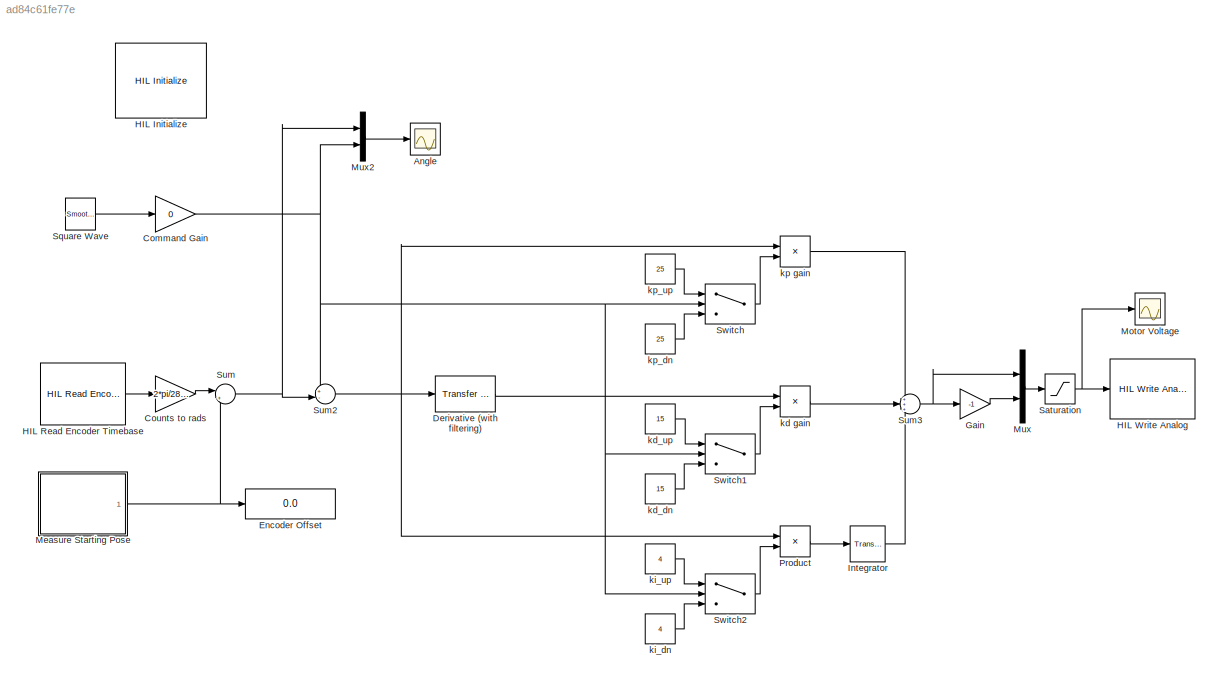
MODEL slx_ad84c61fe77e
KIND model
CONFIG AbsTol = auto
CONFIG EnableMultiTasking = off
CONFIG FixedStep = 0.002
CONFIG MaxStep = auto
CONFIG MinStep = auto
CONFIG RelTol = 1e-3
CONFIG SampleTimeConstraint = Unconstrained
CONFIG SolverName = ode1
CONFIG StartTime = 0.0
CONFIG StopTime = inf
BLOCK [Scope] Angle
  Floating = off
  NumInputPorts = 1
  Ports = [1]
  ScopeSpecificationString = Simulink.scopes.TimeScopeBlockCfg('CurrentConfiguration', extmgr.ConfigurationSet(extmgr.Configuration('Core','General UI',true),extmgr.Configuration('Core','Source UI',true),extmgr.Configuration('Sources','WiredSimulink',true,'DataLoggingVariableName','ScopeData1','DataLoggingMaxPoints','20000','DataLoggingSaveFormat','Array','DataLoggingDecimation','1'),extmgr.Configuration('Visuals','Time Domai...<+1735ch>
BLOCK [Gain] Command Gain
  Gain = 0
BLOCK [Gain] Counts to rads
  Gain = 2*pi/2880
BLOCK [Reference] Derivative (with filtering)  REF=simulink_extras/Additional
Linear/Transfer Fcn
(with initial states)
  Ports = [1, 1]
  SourceBlock = simulink_extras/Additional\nLinear/Transfer Fcn\n(with initial states)
  SourceProductBaseCode = SL
  SourceType = Transfer Function with Initial States
BLOCK [Display] Encoder Offset
  Decimation = 1
  Ports = [1]
BLOCK [Gain] Gain
  Gain = -1
BLOCK [Reference] HIL Initialize  REF=quarc_library/Data Acquisition/Generic/Configuration/HIL Initialize
  AttributesFormatString = %<object_name> (%<board_type>-%<board_number>)
  Ports = []
  Priority = -99
  SourceBlock = quarc_library/Data Acquisition/Generic/Configuration/HIL Initialize
  SourceProductName = QUARC Targets
  SourceType = HIL Initialize
  UserDataPersistent = on
BLOCK [Reference] HIL Read Encoder Timebase  REF=quarc_library/Data Acquisition/Generic/Timebases/HIL Read Encoder
Timebase
  AttributesFormatString = (%<object_name>)
  Ports = [0, 1]
  SourceBlock = quarc_library/Data Acquisition/Generic/Timebases/HIL Read Encoder\nTimebase
  SourceProductName = QUARC Targets
  SourceType = HIL Read Encoder Timebase
  UserDataPersistent = on
BLOCK [Reference] HIL Write Analog  REF=quarc_library/Data Acquisition/Generic/Immediate I//O/HIL Write Analog
  AttributesFormatString = (%<object_name>)
  Ports = [1]
  SourceBlock = quarc_library/Data Acquisition/Generic/Immediate I//O/HIL Write Analog
  SourceProductName = QUARC Targets
  SourceType = HIL Write Analog
  UserDataPersistent = on
BLOCK [Reference] Integrator  REF=simulink_extras/Additional
Linear/Transfer Fcn
(with initial states)
  Ports = [1, 1]
  SourceBlock = simulink_extras/Additional\nLinear/Transfer Fcn\n(with initial states)
  SourceProductBaseCode = SL
  SourceType = Transfer Function with Initial States
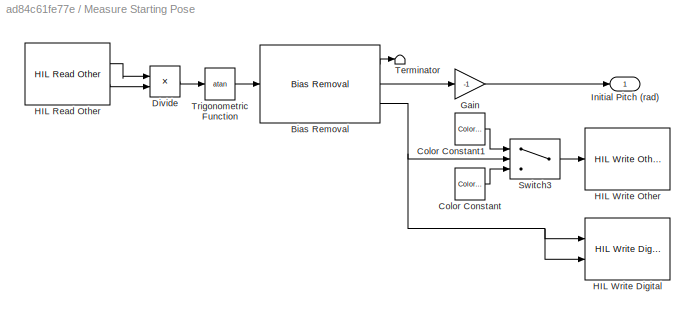
BLOCK [SubSystem] Measure Starting Pose
  Ports = [0, 1]
  RequestExecContextInheritance = off
BLOCK [Reference] Measure Starting Pose/Bias Removal  REF=quarc_library/Discrete/Bias Removal
  Ports = [1, 3]
  SourceBlock = quarc_library/Discrete/Bias Removal
  SourceProductName = QUARC Targets
  SourceType = Bias Removal
BLOCK [Reference] Measure Starting Pose/Color Constant  REF=quarc_library/Sources/Signals/Color Constant
  Ports = [0, 1]
  SourceBlock = quarc_library/Sources/Signals/Color Constant
  SourceProductName = QUARC Targets
  SourceType = Color Constant
BLOCK [Reference] Measure Starting Pose/Color Constant1  REF=quarc_library/Sources/Signals/Color Constant
  Ports = [0, 1]
  SourceBlock = quarc_library/Sources/Signals/Color Constant
  SourceProductName = QUARC Targets
  SourceType = Color Constant
BLOCK [Product] Measure Starting Pose/Divide
  Inputs = */
  Ports = [2, 1]
BLOCK [Gain] Measure Starting Pose/Gain
  Gain = -1
BLOCK [Reference] Measure Starting Pose/HIL Read Other  REF=quarc_library/Data Acquisition/Generic/Immediate I//O/HIL Read Other
  AttributesFormatString = (%<object_name>)
  Ports = [0, 2]
  SourceBlock = quarc_library/Data Acquisition/Generic/Immediate I//O/HIL Read Other
  SourceProductName = QUARC Targets
  SourceType = HIL Read Other
  UserDataPersistent = on
BLOCK [Reference] Measure Starting Pose/HIL Write Digital  REF=quarc_library/Data Acquisition/Generic/Immediate I//O/HIL Write Digital
  AttributesFormatString = (%<object_name>)
  Ports = [2]
  SourceBlock = quarc_library/Data Acquisition/Generic/Immediate I//O/HIL Write Digital
  SourceProductName = QUARC Targets
  SourceType = HIL Write Digital
  UserDataPersistent = on
BLOCK [Reference] Measure Starting Pose/HIL Write Other  REF=quarc_library/Data Acquisition/Generic/Immediate I//O/HIL Write Other
  AttributesFormatString = (%<object_name>)
  Ports = [1]
  SourceBlock = quarc_library/Data Acquisition/Generic/Immediate I//O/HIL Write Other
  SourceProductName = QUARC Targets
  SourceType = HIL Write Other
  UserDataPersistent = on
BLOCK [Outport] Measure Starting Pose/Initial Pitch (rad)
BLOCK [Switch] Measure Starting Pose/Switch3
  Criteria = u2 ~= 0
  InputSameDT = off
  SaturateOnIntegerOverflow = off
BLOCK [Terminator] Measure Starting Pose/Terminator
BLOCK [Trigonometry] Measure Starting Pose/Trigonometric Function
  Operator = atan
  Ports = [1, 1]
BLOCK [Scope] Motor Voltage
  Floating = off
  NumInputPorts = 1
  Ports = [1]
  ScopeSpecificationString = Simulink.scopes.TimeScopeBlockCfg('CurrentConfiguration', extmgr.ConfigurationSet(extmgr.Configuration('Core','General UI',true),extmgr.Configuration('Core','Source UI',true),extmgr.Configuration('Sources','WiredSimulink',true,'DataLoggingMaxPoints','20000','DataLoggingSaveFormat','Array','DataLoggingDecimation','1'),extmgr.Configuration('Visuals','Time Domain',true,'SerializedDisplays',{struct('M...<+1714ch>
BLOCK [Mux] Mux
  DisplayOption = bar
  Inputs = 2
  Ports = [2, 1]
BLOCK [Mux] Mux2
  DisplayOption = bar
  Inputs = 2
  Ports = [2, 1]
BLOCK [Product] Product
  Ports = [2, 1]
BLOCK [Saturate] Saturation
  LowerLimit = -24
  UpperLimit = 24
BLOCK [Reference] Square Wave  REF=quarc_library/Sources/Signals/Smooth Signal
Generator
  Ports = [0, 1]
  SourceBlock = quarc_library/Sources/Signals/Smooth Signal\nGenerator
  SourceProductName = QUARC Targets
  SourceType = Smooth Signal Generator
BLOCK [Sum] Sum
  Inputs = |++
  Ports = [2, 1]
BLOCK [Sum] Sum2
  Inputs = +-|
  Ports = [2, 1]
BLOCK [Sum] Sum3
  Inputs = +++
  Ports = [3, 1]
BLOCK [Switch] Switch
  Criteria = u2 > Threshold
  InputSameDT = off
  SaturateOnIntegerOverflow = off
  Threshold = 0.1
BLOCK [Switch] Switch1
  Criteria = u2 > Threshold
  InputSameDT = off
  SaturateOnIntegerOverflow = off
  Threshold = 0.1
BLOCK [Switch] Switch2
  Criteria = u2 > Threshold
  InputSameDT = off
  SaturateOnIntegerOverflow = off
  Threshold = 0.1
BLOCK [Product] kd gain
  Ports = [2, 1]
BLOCK [Constant] kd_dn
  Value = 15
BLOCK [Constant] kd_up
  Value = 15
BLOCK [Constant] ki_dn
  Value = 4
BLOCK [Constant] ki_up
  Value = 4
BLOCK [Product] kp gain
  Ports = [2, 1]
BLOCK [Constant] kp_dn
  Value = 25
BLOCK [Constant] kp_up
  Value = 25
NET Command Gain:1 -> Mux2:2, Sum2:1, Switch1:2, Switch2:2, Switch:2
LINE Counts to rads:1 -> Sum:1
LINE Derivative (with filtering):1 -> kd gain:1
LINE Gain:1 -> Mux:2
LINE HIL Read Encoder Timebase:1 -> Counts to rads:1
LINE Integrator:1 -> Sum3:3
LINE Measure Starting Pose/Bias Removal:1 -> Measure Starting Pose/Terminator:1
LINE Measure Starting Pose/Bias Removal:2 -> Measure Starting Pose/Gain:1
NET Measure Starting Pose/Bias Removal:3 -> Measure Starting Pose/HIL Write Digital:1, Measure Starting Pose/HIL Write Digital:2, Measure Starting Pose/Switch3:2
LINE Measure Starting Pose/Color Constant1:1 -> Measure Starting Pose/Switch3:1
LINE Measure Starting Pose/Color Constant:1 -> Measure Starting Pose/Switch3:3
LINE Measure Starting Pose/Divide:1 -> Measure Starting Pose/Trigonometric Function:1
LINE Measure Starting Pose/Gain:1 -> Measure Starting Pose/Initial Pitch (rad):1
LINE Measure Starting Pose/HIL Read Other:1 -> Measure Starting Pose/Divide:1
LINE Measure Starting Pose/HIL Read Other:2 -> Measure Starting Pose/Divide:2
LINE Measure Starting Pose/Switch3:1 -> Measure Starting Pose/HIL Write Other:1
LINE Measure Starting Pose/Trigonometric Function:1 -> Measure Starting Pose/Bias Removal:1
NET Measure Starting Pose:1 -> Encoder Offset:1, Sum:2
LINE Mux2:1 -> Angle:1
LINE Mux:1 -> Saturation:1
LINE Product:1 -> Integrator:1
NET Saturation:1 -> HIL Write Analog:1, Motor Voltage:1
LINE Square Wave:1 -> Command Gain:1
NET Sum2:1 -> Derivative (with filtering):1, Product:1, kp gain:1
NET Sum3:1 -> Gain:1, Mux:1
NET Sum:1 -> Mux2:1, Sum2:2
LINE Switch1:1 -> kd gain:2
LINE Switch2:1 -> Product:2
LINE Switch:1 -> kp gain:2
LINE kd gain:1 -> Sum3:2
LINE kd_dn:1 -> Switch1:3
LINE kd_up:1 -> Switch1:1
LINE ki_dn:1 -> Switch2:3
LINE ki_up:1 -> Switch2:1
LINE kp gain:1 -> Sum3:1
LINE kp_dn:1 -> Switch:3
LINE kp_up:1 -> Switch:1
note: NET lines group one-source signal fan-out (src -> all destinations, sorted); 1:1 wires keep LINE
